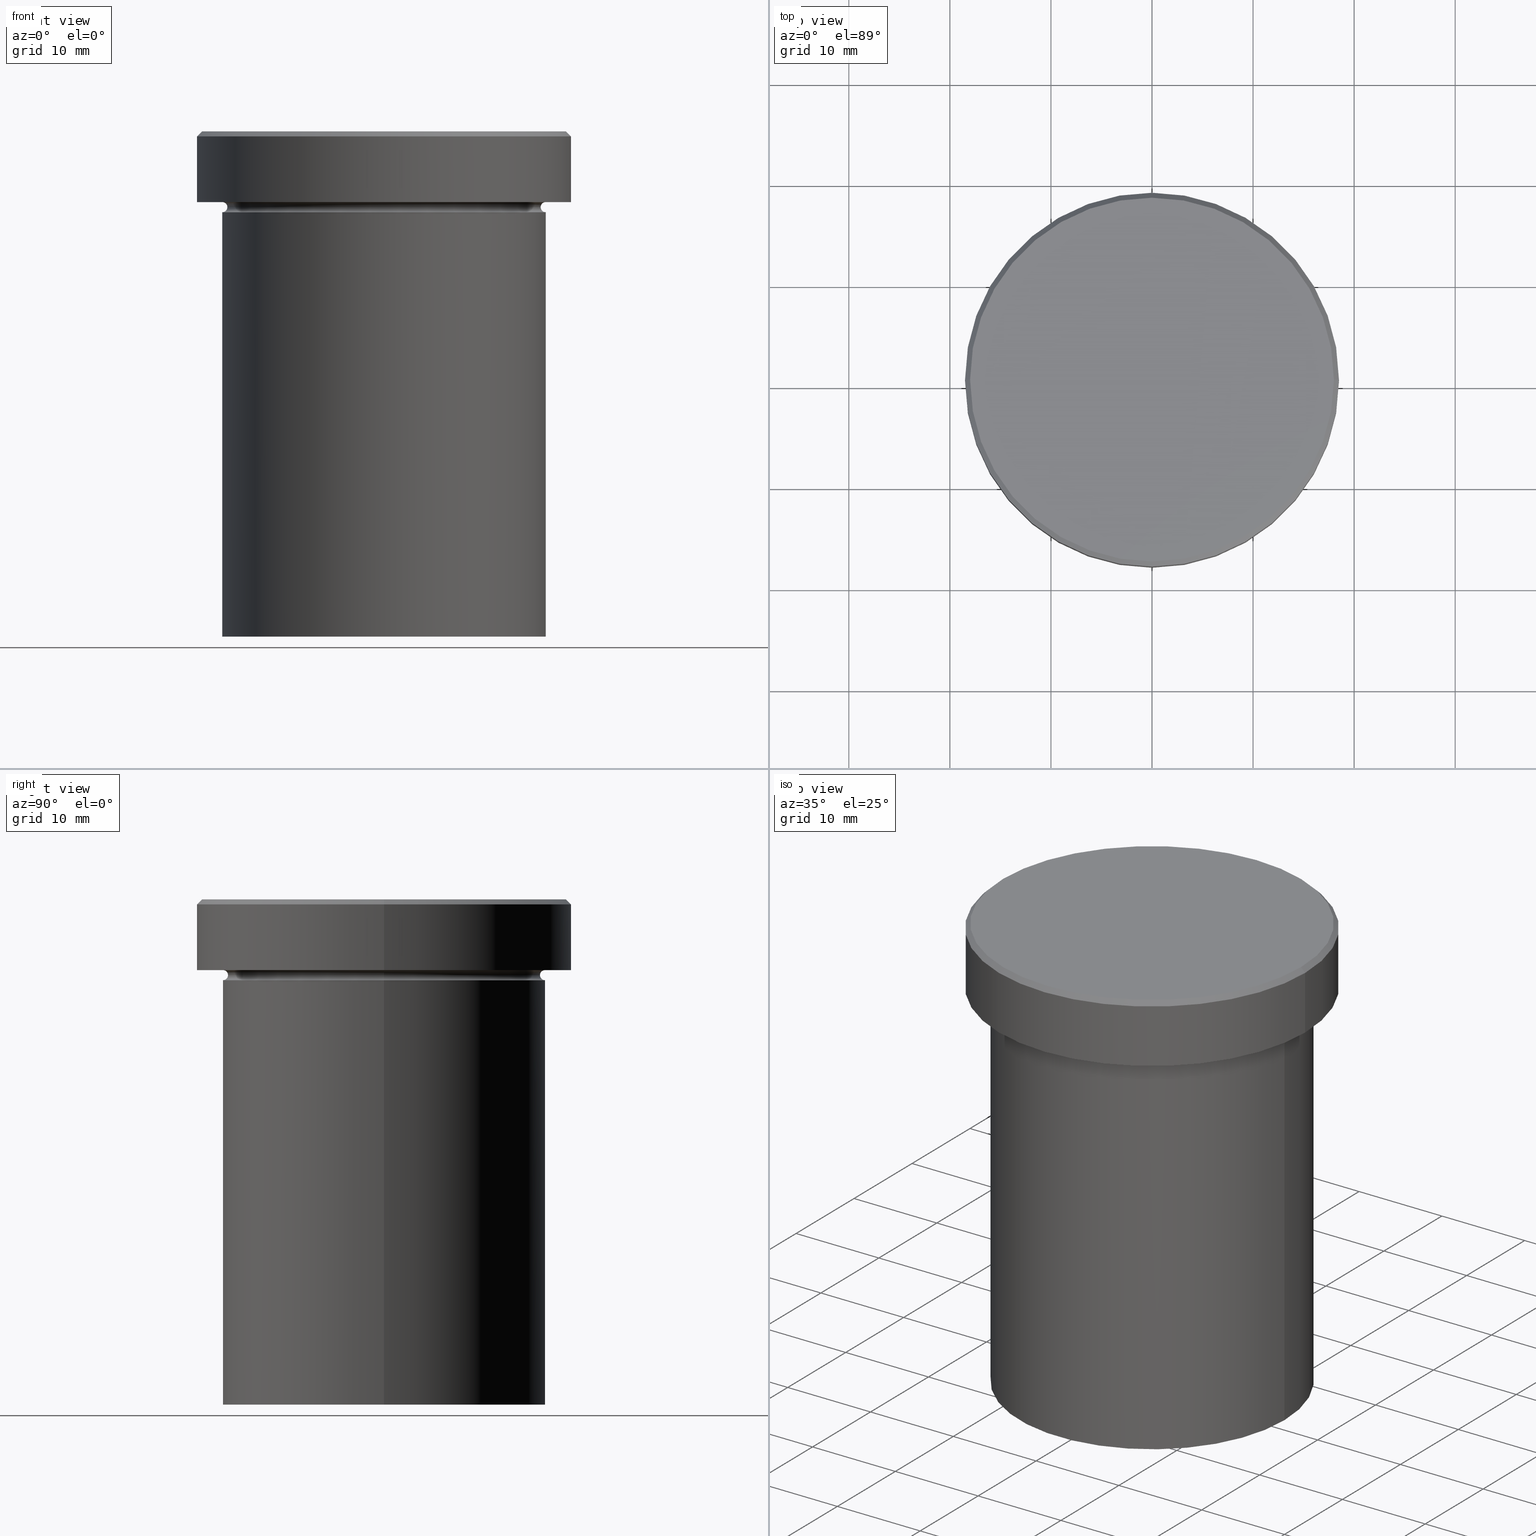
[diagram: canonical four-view strip — front | top / right | iso, engineering-drawing reading convention]
A machine part, canonical four-view strip (front | top / right | iso — engineering-drawing reading convention). The complete STEP part file that produces these views, byte-faithful:
ISO-10303-21;
HEADER;
FILE_DESCRIPTION (( 'STEP AP203' ),
    '1' );
FILE_NAME ('3202.STEP',
    '2024-01-02T18:55:02',
    ( '' ),
    ( '' ),
    'SwSTEP 2.0',
    'SolidWorks 2019',
    '' );
FILE_SCHEMA (( 'CONFIG_CONTROL_DESIGN' ));
ENDSEC;

DATA;
#1 = CARTESIAN_POINT ( 'NONE',  ( 0.000000000000000000, 0.000000000000000000, -0.5000000000000004441 ) ) ;
#2 = AXIS2_PLACEMENT_3D ( 'NONE', #148, #382, #142 ) ;
#3 = AXIS2_PLACEMENT_3D ( 'NONE', #265, #100, #23 ) ;
#4 = PERSON_AND_ORGANIZATION ( #391, #236 ) ;
#5 = AXIS2_PLACEMENT_3D ( 'NONE', #375, #83, #55 ) ;
#6 = PERSON_AND_ORGANIZATION ( #391, #236 ) ;
#7 = ORIENTED_EDGE ( 'NONE', *, *, #215, .F. ) ;
#8 = CARTESIAN_POINT ( 'NONE',  ( -18.50000000000000000, 2.265596578422603396E-15, 0.000000000000000000 ) ) ;
#9 = AXIS2_PLACEMENT_3D ( 'NONE', #273, #406, #307 ) ;
#10 = ADVANCED_FACE ( 'NONE', ( #116 ), #139, .F. ) ;
#11 = CARTESIAN_POINT ( 'NONE',  ( -16.00000000000000000, 0.000000000000000000, -6.999999999999999112 ) ) ;
#12 = AXIS2_PLACEMENT_3D ( 'NONE', #257, #387, #224 ) ;
#13 = DIRECTION ( 'NONE',  ( -0.7071067811865451302, 0.000000000000000000, -0.7071067811865500152 ) ) ;
#14 = DIRECTION ( 'NONE',  ( 1.000000000000000000, 0.000000000000000000, 0.000000000000000000 ) ) ;
#15 = AXIS2_PLACEMENT_3D ( 'NONE', #131, #402, #178 ) ;
#16 = AXIS2_PLACEMENT_3D ( 'NONE', #160, #332, #136 ) ;
#17 = ADVANCED_FACE ( 'NONE', ( #149 ), #85, .F. ) ;
#18 = ADVANCED_FACE ( 'NONE', ( #349 ), #189, .T. ) ;
#19 = LOCAL_TIME ( 19, 55, 2.000000000000000000, #373 ) ;
#20 = CALENDAR_DATE ( 2024, 2, 1 ) ;
#21 = ORIENTED_EDGE ( 'NONE', *, *, #191, .F. ) ;
#22 = LINE ( 'NONE', #68, #272 ) ;
#23 = DIRECTION ( 'NONE',  ( -1.000000000000000000, 0.000000000000000000, 0.000000000000000000 ) ) ;
#24 = DIRECTION ( 'NONE',  ( -0.000000000000000000, -0.000000000000000000, 1.000000000000000000 ) ) ;
#25 = DIRECTION ( 'NONE',  ( 0.000000000000000000, 0.000000000000000000, -1.000000000000000000 ) ) ;
#26 = EDGE_CURVE ( 'NONE', #168, #268, #202, .T. ) ;
#27 = CARTESIAN_POINT ( 'NONE',  ( 18.00000000000000355, 2.204364238465235822E-15, 0.000000000000000000 ) ) ;
#28 = CARTESIAN_POINT ( 'NONE',  ( 0.000000000000000000, 0.000000000000000000, -50.00000000000000000 ) ) ;
#29 = EDGE_CURVE ( 'NONE', #67, #168, #309, .T. ) ;
#30 = PERSON_AND_ORGANIZATION ( #391, #236 ) ;
#31 = TOROIDAL_SURFACE ( 'NONE', #344, 16.00000000000000000, 0.5000000000000000000 ) ;
#32 = DATE_AND_TIME ( #314, #249 ) ;
#33 = EDGE_LOOP ( 'NONE', ( #342, #229, #294, #43 ) ) ;
#34 = ORIENTED_EDGE ( 'NONE', *, *, #65, .T. ) ;
#35 = CARTESIAN_POINT ( 'NONE',  ( 0.000000000000000000, 0.000000000000000000, -7.500000000000000000 ) ) ;
#36 = CC_DESIGN_APPROVAL ( #56, ( #337 ) ) ;
#37 = CC_DESIGN_DATE_AND_TIME_ASSIGNMENT ( #399, #196, ( #337 ) ) ;
#38 = AXIS2_PLACEMENT_3D ( 'NONE', #105, #405, #369 ) ;
#39 = EDGE_LOOP ( 'NONE', ( #200, #76, #341, #165 ) ) ;
#40 = UNCERTAINTY_MEASURE_WITH_UNIT (LENGTH_MEASURE( 1.000000000000000082E-05 ), #93, 'distance_accuracy_value', 'NONE');
#41 = CARTESIAN_POINT ( 'NONE',  ( 0.000000000000000000, 0.000000000000000000, -7.500000000000000000 ) ) ;
#42 = CONICAL_SURFACE ( 'NONE', #9, 18.00000000000000355, 0.7853981633974447263 ) ;
#43 = ORIENTED_EDGE ( 'NONE', *, *, #191, .T. ) ;
#44 = DIRECTION ( 'NONE',  ( 0.000000000000000000, 0.000000000000000000, -1.000000000000000000 ) ) ;
#45 = ORIENTED_EDGE ( 'NONE', *, *, #407, .F. ) ;
#46 = CYLINDRICAL_SURFACE ( 'NONE', #118, 18.50000000000000000 ) ;
#47 = CC_DESIGN_PERSON_AND_ORGANIZATION_ASSIGNMENT ( #6, #54, ( #328 ) ) ;
#48 = ORIENTED_EDGE ( 'NONE', *, *, #356, .F. ) ;
#49 = CARTESIAN_POINT ( 'NONE',  ( 0.000000000000000000, 0.000000000000000000, 0.000000000000000000 ) ) ;
#50 = DIRECTION ( 'NONE',  ( -0.000000000000000000, -0.000000000000000000, 1.000000000000000000 ) ) ;
#51 = VECTOR ( 'NONE', #60, 1000.000000000000000 ) ;
#52 = CARTESIAN_POINT ( 'NONE',  ( 0.000000000000000000, 16.00000000000000000, -50.00000000000000000 ) ) ;
#53 = APPROVAL_PERSON_ORGANIZATION ( #4, #276, #86 ) ;
#54 = PERSON_AND_ORGANIZATION_ROLE ( 'design_owner' ) ;
#55 = DIRECTION ( 'NONE',  ( -1.000000000000000000, 0.000000000000000000, 0.000000000000000000 ) ) ;
#56 = APPROVAL ( #138, 'NEUR�EN�' ) ;
#57 = CARTESIAN_POINT ( 'NONE',  ( 0.000000000000000000, 0.000000000000000000, -0.5000000000000004441 ) ) ;
#58 = CARTESIAN_POINT ( 'NONE',  ( 0.000000000000000000, 0.000000000000000000, -6.999999999999998224 ) ) ;
#59 = APPROVAL_PERSON_ORGANIZATION ( #30, #321, #281 ) ;
#60 = DIRECTION ( 'NONE',  ( -0.000000000000000000, -0.000000000000000000, 1.000000000000000000 ) ) ;
#61 = EDGE_CURVE ( 'NONE', #104, #133, #336, .T. ) ;
#62 = CARTESIAN_POINT ( 'NONE',  ( 18.50000000000000000, 0.000000000000000000, -0.5000000000000004441 ) ) ;
#63 = EDGE_CURVE ( 'NONE', #70, #175, #291, .T. ) ;
#64 = CARTESIAN_POINT ( 'NONE',  ( 18.50000000000000000, 0.000000000000000000, 0.000000000000000000 ) ) ;
#65 = EDGE_CURVE ( 'NONE', #193, #268, #261, .T. ) ;
#66 = ORIENTED_EDGE ( 'NONE', *, *, #91, .F. ) ;
#67 = VERTEX_POINT ( 'NONE', #395 ) ;
#68 = CARTESIAN_POINT ( 'NONE',  ( -16.00000000000000000, 1.959434878635765131E-15, 0.000000000000000000 ) ) ;
#69 = AXIS2_PLACEMENT_3D ( 'NONE', #84, #88, #117 ) ;
#70 = VERTEX_POINT ( 'NONE', #227 ) ;
#71 = EDGE_CURVE ( 'NONE', #362, #268, #317, .T. ) ;
#72 = PERSON_AND_ORGANIZATION ( #391, #236 ) ;
#73 = ORIENTED_EDGE ( 'NONE', *, *, #242, .F. ) ;
#74 = CYLINDRICAL_SURFACE ( 'NONE', #81, 16.00000000000000000 ) ;
#75 = MANIFOLD_SOLID_BREP ( 'Zkosen�1', #274 ) ;
#76 = ORIENTED_EDGE ( 'NONE', *, *, #394, .T. ) ;
#77 = DIRECTION ( 'NONE',  ( -1.000000000000000000, 0.000000000000000000, -0.000000000000000000 ) ) ;
#78 = DATE_TIME_ROLE ( 'creation_date' ) ;
#79 = EDGE_LOOP ( 'NONE', ( #73, #400, #403, #209 ) ) ;
#80 = DIRECTION ( 'NONE',  ( -0.000000000000000000, -0.000000000000000000, 1.000000000000000000 ) ) ;
#81 = AXIS2_PLACEMENT_3D ( 'NONE', #49, #248, #275 ) ;
#82 = EDGE_CURVE ( 'NONE', #362, #67, #380, .T. ) ;
#83 = DIRECTION ( 'NONE',  ( -0.000000000000000000, -0.000000000000000000, 1.000000000000000000 ) ) ;
#84 = CARTESIAN_POINT ( 'NONE',  ( 0.000000000000000000, 0.000000000000000000, 0.000000000000000000 ) ) ;
#85 = TOROIDAL_SURFACE ( 'NONE', #216, 16.00000000000000000, 0.5000000000000000000 ) ;
#86 = APPROVAL_ROLE ( '' ) ;
#87 = EDGE_LOOP ( 'NONE', ( #99, #320 ) ) ;
#88 = DIRECTION ( 'NONE',  ( 0.000000000000000000, 0.000000000000000000, -1.000000000000000000 ) ) ;
#89 = DIRECTION ( 'NONE',  ( 1.000000000000000000, 0.000000000000000000, 0.000000000000000000 ) ) ;
#90 = AXIS2_PLACEMENT_3D ( 'NONE', #58, #182, #315 ) ;
#91 = EDGE_CURVE ( 'NONE', #371, #193, #221, .T. ) ;
#92 = EDGE_LOOP ( 'NONE', ( #110, #98, #392, #306 ) ) ;
#93 =( LENGTH_UNIT ( ) NAMED_UNIT ( * ) SI_UNIT ( .MILLI., .METRE. ) );
#94 = CARTESIAN_POINT ( 'NONE',  ( 16.00000000000000000, 0.000000000000000000, -50.00000000000000000 ) ) ;
#95 = CC_DESIGN_PERSON_AND_ORGANIZATION_ASSIGNMENT ( #279, #310, ( #108 ) ) ;
#96 = DIRECTION ( 'NONE',  ( 0.000000000000000000, -0.000000000000000000, 1.000000000000000000 ) ) ;
#97 = FACE_OUTER_BOUND ( 'NONE', #264, .T. ) ;
#98 = ORIENTED_EDGE ( 'NONE', *, *, #29, .T. ) ;
#99 = ORIENTED_EDGE ( 'NONE', *, *, #262, .T. ) ;
#100 = DIRECTION ( 'NONE',  ( -0.000000000000000000, -0.000000000000000000, 1.000000000000000000 ) ) ;
#101 = CARTESIAN_POINT ( 'NONE',  ( 0.000000000000000000, 0.000000000000000000, 0.000000000000000000 ) ) ;
#102 = EDGE_CURVE ( 'NONE', #268, #168, #353, .T. ) ;
#103 = AXIS2_PLACEMENT_3D ( 'NONE', #41, #363, #300 ) ;
#104 = VERTEX_POINT ( 'NONE', #112 ) ;
#105 = CARTESIAN_POINT ( 'NONE',  ( 0.000000000000000000, 18.50000000000000000, -6.999999999999999112 ) ) ;
#106 = DIRECTION ( 'NONE',  ( 1.000000000000000000, 0.000000000000000000, 0.000000000000000000 ) ) ;
#107 = COORDINATED_UNIVERSAL_TIME_OFFSET ( 1, 0, .AHEAD. ) ;
#108 = PRODUCT_DEFINITION ( 'NEZN�M�', '', #377, #348 ) ;
#109 = APPLICATION_PROTOCOL_DEFINITION ( 'international standard', 'config_control_design', 1994, #383 ) ;
#110 = ORIENTED_EDGE ( 'NONE', *, *, #389, .F. ) ;
#111 = CARTESIAN_POINT ( 'NONE',  ( -18.50000000000000000, 2.265596578422603396E-15, -0.5000000000000004441 ) ) ;
#112 = CARTESIAN_POINT ( 'NONE',  ( 18.50000000000000000, 0.000000000000000000, -6.999999999999998224 ) ) ;
#113 = APPROVAL_STATUS ( 'not_yet_approved' ) ;
#114 = CARTESIAN_POINT ( 'NONE',  ( -16.00000000000000000, 1.959434878635765131E-15, -8.000000000000000000 ) ) ;
#115 = APPROVAL_DATE_TIME ( #32, #276 ) ;
#116 = FACE_OUTER_BOUND ( 'NONE', #157, .T. ) ;
#117 = DIRECTION ( 'NONE',  ( -1.000000000000000000, 0.000000000000000000, 0.000000000000000000 ) ) ;
#118 = AXIS2_PLACEMENT_3D ( 'NONE', #297, #134, #404 ) ;
#119 = DIRECTION ( 'NONE',  ( 1.000000000000000000, 0.000000000000000000, 0.000000000000000000 ) ) ;
#120 = DIRECTION ( 'NONE',  ( -0.000000000000000000, -0.000000000000000000, 1.000000000000000000 ) ) ;
#121 = CC_DESIGN_PERSON_AND_ORGANIZATION_ASSIGNMENT ( #158, #125, ( #337 ) ) ;
#122 = DIRECTION ( 'NONE',  ( -0.000000000000000000, -0.000000000000000000, 1.000000000000000000 ) ) ;
#123 = DIRECTION ( 'NONE',  ( -0.000000000000000000, -0.000000000000000000, 1.000000000000000000 ) ) ;
#124 = EDGE_CURVE ( 'NONE', #247, #133, #376, .T. ) ;
#125 = PERSON_AND_ORGANIZATION_ROLE ( 'classification_officer' ) ;
#126 = ORIENTED_EDGE ( 'NONE', *, *, #215, .T. ) ;
#127 = ADVANCED_BREP_SHAPE_REPRESENTATION ( '3202', ( #75, #15 ), #144 ) ;
#128 = CIRCLE ( 'NONE', #237, 16.00000000000000000 ) ;
#129 = ORIENTED_EDGE ( 'NONE', *, *, #61, .F. ) ;
#130 = CARTESIAN_POINT ( 'NONE',  ( -18.00000000000000355, 0.000000000000000000, 0.000000000000000000 ) ) ;
#131 = CARTESIAN_POINT ( 'NONE',  ( 0.000000000000000000, 0.000000000000000000, 0.000000000000000000 ) ) ;
#132 = ADVANCED_FACE ( 'NONE', ( #184 ), #255, .T. ) ;
#133 = VERTEX_POINT ( 'NONE', #62 ) ;
#134 = DIRECTION ( 'NONE',  ( -0.000000000000000000, -0.000000000000000000, 1.000000000000000000 ) ) ;
#135 = DIRECTION ( 'NONE',  ( 0.7071067811865451302, 8.659560562354903276E-17, -0.7071067811865500152 ) ) ;
#136 = DIRECTION ( 'NONE',  ( -1.000000000000000000, -1.224646799147349509E-16, 0.000000000000000000 ) ) ;
#137 = EDGE_CURVE ( 'NONE', #67, #175, #219, .T. ) ;
#138 = APPROVAL_STATUS ( 'not_yet_approved' ) ;
#139 = TOROIDAL_SURFACE ( 'NONE', #286, 16.00000000000000000, 0.5000000000000000000 ) ;
#140 = CARTESIAN_POINT ( 'NONE',  ( 0.000000000000000000, 0.000000000000000000, -7.500000000000000000 ) ) ;
#141 = CALENDAR_DATE ( 2024, 2, 1 ) ;
#142 = DIRECTION ( 'NONE',  ( 1.000000000000000000, 0.000000000000000000, 0.000000000000000000 ) ) ;
#143 = DATE_AND_TIME ( #250, #19 ) ;
#144 =( GEOMETRIC_REPRESENTATION_CONTEXT ( 3 ) GLOBAL_UNCERTAINTY_ASSIGNED_CONTEXT ( ( #40 ) ) GLOBAL_UNIT_ASSIGNED_CONTEXT ( ( #93, #176, #210 ) ) REPRESENTATION_CONTEXT ( 'NONE', 'WORKASPACE' ) );
#145 = DIRECTION ( 'NONE',  ( -0.000000000000000000, -0.000000000000000000, 1.000000000000000000 ) ) ;
#146 = ORIENTED_EDGE ( 'NONE', *, *, #185, .F. ) ;
#147 = EDGE_CURVE ( 'NONE', #360, #247, #217, .T. ) ;
#148 = CARTESIAN_POINT ( 'NONE',  ( 0.000000000000000000, 0.000000000000000000, 0.000000000000000000 ) ) ;
#149 = FACE_OUTER_BOUND ( 'NONE', #92, .T. ) ;
#150 = DIRECTION ( 'NONE',  ( -1.000000000000000000, 0.000000000000000000, 0.000000000000000000 ) ) ;
#151 = LOCAL_TIME ( 19, 55, 2.000000000000000000, #293 ) ;
#152 = ADVANCED_FACE ( 'NONE', ( #283 ), #162, .T. ) ;
#153 = CARTESIAN_POINT ( 'NONE',  ( 0.000000000000000000, 0.000000000000000000, -7.500000000000000000 ) ) ;
#154 = CARTESIAN_POINT ( 'NONE',  ( 0.000000000000000000, 0.000000000000000000, 0.000000000000000000 ) ) ;
#155 = LOCAL_TIME ( 19, 55, 2.000000000000000000, #367 ) ;
#156 = CC_DESIGN_SECURITY_CLASSIFICATION ( #337, ( #377 ) ) ;
#157 = EDGE_LOOP ( 'NONE', ( #280, #296, #365, #299 ) ) ;
#158 = PERSON_AND_ORGANIZATION ( #391, #236 ) ;
#159 = ORIENTED_EDGE ( 'NONE', *, *, #26, .F. ) ;
#160 = CARTESIAN_POINT ( 'NONE',  ( 16.00000000000000000, 1.959434878635765131E-15, -7.500000000000000000 ) ) ;
#161 = AXIS2_PLACEMENT_3D ( 'NONE', #333, #50, #379 ) ;
#162 = CONICAL_SURFACE ( 'NONE', #69, 18.00000000000000355, 0.7853981633974447263 ) ;
#163 = ADVANCED_FACE ( 'NONE', ( #211 ), #326, .F. ) ;
#164 = PERSON_AND_ORGANIZATION ( #391, #236 ) ;
#165 = ORIENTED_EDGE ( 'NONE', *, *, #65, .F. ) ;
#166 = FACE_OUTER_BOUND ( 'NONE', #33, .T. ) ;
#167 = VECTOR ( 'NONE', #177, 1000.000000000000000 ) ;
#168 = VERTEX_POINT ( 'NONE', #114 ) ;
#169 = CARTESIAN_POINT ( 'NONE',  ( -18.50000000000000000, 2.265596578422603396E-15, -6.999999999999998224 ) ) ;
#170 = ORIENTED_EDGE ( 'NONE', *, *, #394, .F. ) ;
#171 = AXIS2_PLACEMENT_3D ( 'NONE', #57, #390, #180 ) ;
#172 = APPLICATION_PROTOCOL_DEFINITION ( 'international standard', 'config_control_design', 1994, #230 ) ;
#173 = CARTESIAN_POINT ( 'NONE',  ( -16.00000000000000000, 1.959434878635765131E-15, -50.00000000000000000 ) ) ;
#174 = CARTESIAN_POINT ( 'NONE',  ( 16.00000000000000000, 0.000000000000000000, 0.000000000000000000 ) ) ;
#175 = VERTEX_POINT ( 'NONE', #11 ) ;
#176 =( NAMED_UNIT ( * ) PLANE_ANGLE_UNIT ( ) SI_UNIT ( $, .RADIAN. ) );
#177 = DIRECTION ( 'NONE',  ( -0.000000000000000000, -0.000000000000000000, 1.000000000000000000 ) ) ;
#178 = DIRECTION ( 'NONE',  ( 1.000000000000000000, 0.000000000000000000, 0.000000000000000000 ) ) ;
#179 = CARTESIAN_POINT ( 'NONE',  ( 0.000000000000000000, 0.000000000000000000, -7.500000000000000000 ) ) ;
#180 = DIRECTION ( 'NONE',  ( 1.000000000000000000, 0.000000000000000000, 0.000000000000000000 ) ) ;
#181 = COORDINATED_UNIVERSAL_TIME_OFFSET ( 1, 0, .AHEAD. ) ;
#182 = DIRECTION ( 'NONE',  ( -0.000000000000000000, -0.000000000000000000, 1.000000000000000000 ) ) ;
#183 = AXIS2_PLACEMENT_3D ( 'NONE', #289, #123, #260 ) ;
#184 = FACE_OUTER_BOUND ( 'NONE', #253, .T. ) ;
#185 = EDGE_CURVE ( 'NONE', #193, #371, #128, .T. ) ;
#186 = AXIS2_PLACEMENT_3D ( 'NONE', #1, #350, #89 ) ;
#187 = CYLINDRICAL_SURFACE ( 'NONE', #213, 16.00000000000000000 ) ;
#188 = SHAPE_DEFINITION_REPRESENTATION ( #240, #127 ) ;
#189 = PLANE ( 'NONE',  #393 ) ;
#190 = ORIENTED_EDGE ( 'NONE', *, *, #262, .F. ) ;
#191 = EDGE_CURVE ( 'NONE', #133, #247, #254, .T. ) ;
#192 = DIRECTION ( 'NONE',  ( -0.000000000000000000, -0.000000000000000000, 1.000000000000000000 ) ) ;
#193 = VERTEX_POINT ( 'NONE', #94 ) ;
#194 = CARTESIAN_POINT ( 'NONE',  ( -18.00000000000000355, 0.000000000000000000, 0.000000000000000000 ) ) ;
#195 = ADVANCED_FACE ( 'NONE', ( #351 ), #187, .T. ) ;
#196 = DATE_TIME_ROLE ( 'classification_date' ) ;
#197 = ORIENTED_EDGE ( 'NONE', *, *, #356, .T. ) ;
#198 = DIRECTION ( 'NONE',  ( -0.000000000000000000, -0.000000000000000000, 1.000000000000000000 ) ) ;
#199 = CIRCLE ( 'NONE', #16, 0.5000000000000004441 ) ;
#200 = ORIENTED_EDGE ( 'NONE', *, *, #185, .T. ) ;
#201 = CARTESIAN_POINT ( 'NONE',  ( 16.00000000000000000, 0.000000000000000000, -8.000000000000000000 ) ) ;
#202 = CIRCLE ( 'NONE', #183, 16.00000000000000000 ) ;
#203 = FACE_OUTER_BOUND ( 'NONE', #252, .T. ) ;
#204 = DIRECTION ( 'NONE',  ( 1.000000000000000000, 0.000000000000000000, 0.000000000000000000 ) ) ;
#205 = EDGE_CURVE ( 'NONE', #360, #104, #259, .T. ) ;
#206 = LINE ( 'NONE', #27, #263 ) ;
#207 = DATE_AND_TIME ( #245, #208 ) ;
#208 = LOCAL_TIME ( 19, 55, 2.000000000000000000, #107 ) ;
#209 = ORIENTED_EDGE ( 'NONE', *, *, #63, .F. ) ;
#210 =( NAMED_UNIT ( * ) SI_UNIT ( $, .STERADIAN. ) SOLID_ANGLE_UNIT ( ) );
#211 = FACE_OUTER_BOUND ( 'NONE', #331, .T. ) ;
#212 = DIRECTION ( 'NONE',  ( 1.000000000000000000, 0.000000000000000000, 0.000000000000000000 ) ) ;
#213 = AXIS2_PLACEMENT_3D ( 'NONE', #312, #145, #212 ) ;
#214 = DIRECTION ( 'NONE',  ( -0.000000000000000000, -0.000000000000000000, 1.000000000000000000 ) ) ;
#215 = EDGE_CURVE ( 'NONE', #234, #247, #287, .T. ) ;
#216 = AXIS2_PLACEMENT_3D ( 'NONE', #153, #122, #14 ) ;
#217 = LINE ( 'NONE', #8, #51 ) ;
#218 = DIRECTION ( 'NONE',  ( 0.000000000000000000, 0.000000000000000000, -1.000000000000000000 ) ) ;
#219 = CIRCLE ( 'NONE', #226, 0.5000000000000004441 ) ;
#220 = CIRCLE ( 'NONE', #3, 16.00000000000000000 ) ;
#221 = CIRCLE ( 'NONE', #282, 16.00000000000000000 ) ;
#222 = ADVANCED_FACE ( 'NONE', ( #97 ), #74, .T. ) ;
#223 = PERSON_AND_ORGANIZATION_ROLE ( 'creator' ) ;
#224 = DIRECTION ( 'NONE',  ( -1.000000000000000000, 1.224646799147349509E-16, 0.000000000000000000 ) ) ;
#225 = PERSON_AND_ORGANIZATION ( #391, #236 ) ;
#226 = AXIS2_PLACEMENT_3D ( 'NONE', #277, #347, #386 ) ;
#227 = CARTESIAN_POINT ( 'NONE',  ( 16.00000000000000000, 1.959434878635765131E-15, -6.999999999999999112 ) ) ;
#228 = ADVANCED_FACE ( 'NONE', ( #303, #203 ), #401, .T. ) ;
#229 = ORIENTED_EDGE ( 'NONE', *, *, #205, .T. ) ;
#230 = APPLICATION_CONTEXT ( 'configuration controlled 3d designs of mechanical parts and assemblies' ) ;
#231 = AXIS2_PLACEMENT_3D ( 'NONE', #308, #271, #241 ) ;
#232 = EDGE_LOOP ( 'NONE', ( #197, #368 ) ) ;
#233 = CARTESIAN_POINT ( 'NONE',  ( 18.00000000000000355, 2.234980408443919609E-15, 0.000000000000000000 ) ) ;
#234 = VERTEX_POINT ( 'NONE', #130 ) ;
#235 = CARTESIAN_POINT ( 'NONE',  ( 0.000000000000000000, 0.000000000000000000, -6.999999999999998224 ) ) ;
#236 = ORGANIZATION ( 'NEUR�EN�', 'NEUR�EN�', '' ) ;
#237 = AXIS2_PLACEMENT_3D ( 'NONE', #343, #120, #258 ) ;
#238 = EDGE_LOOP ( 'NONE', ( #146, #66 ) ) ;
#239 = FACE_OUTER_BOUND ( 'NONE', #329, .T. ) ;
#240 = PRODUCT_DEFINITION_SHAPE ( 'NONE', 'NONE',  #108 ) ;
#241 = DIRECTION ( 'NONE',  ( 1.000000000000000000, 0.000000000000000000, 0.000000000000000000 ) ) ;
#242 = EDGE_CURVE ( 'NONE', #362, #70, #199, .T. ) ;
#243 = ORIENTED_EDGE ( 'NONE', *, *, #389, .T. ) ;
#244 = FACE_OUTER_BOUND ( 'NONE', #79, .T. ) ;
#245 = CALENDAR_DATE ( 2024, 2, 1 ) ;
#246 = APPROVAL_STATUS ( 'not_yet_approved' ) ;
#247 = VERTEX_POINT ( 'NONE', #111 ) ;
#248 = DIRECTION ( 'NONE',  ( -0.000000000000000000, -0.000000000000000000, 1.000000000000000000 ) ) ;
#249 = LOCAL_TIME ( 19, 55, 2.000000000000000000, #181 ) ;
#250 = CALENDAR_DATE ( 2024, 2, 1 ) ;
#251 = VERTEX_POINT ( 'NONE', #233 ) ;
#252 = EDGE_LOOP ( 'NONE', ( #45, #322 ) ) ;
#253 = EDGE_LOOP ( 'NONE', ( #324, #339, #397, #129 ) ) ;
#254 = CIRCLE ( 'NONE', #171, 18.50000000000000000 ) ;
#255 = CYLINDRICAL_SURFACE ( 'NONE', #2, 18.50000000000000000 ) ;
#256 = CC_DESIGN_DATE_AND_TIME_ASSIGNMENT ( #409, #78, ( #108 ) ) ;
#257 = CARTESIAN_POINT ( 'NONE',  ( -16.00000000000000000, 1.959434878635765131E-15, -7.500000000000000000 ) ) ;
#258 = DIRECTION ( 'NONE',  ( 1.000000000000000000, 0.000000000000000000, 0.000000000000000000 ) ) ;
#259 = CIRCLE ( 'NONE', #90, 18.50000000000000000 ) ;
#260 = DIRECTION ( 'NONE',  ( 1.000000000000000000, 0.000000000000000000, 0.000000000000000000 ) ) ;
#261 = LINE ( 'NONE', #174, #167 ) ;
#262 = EDGE_CURVE ( 'NONE', #175, #70, #220, .T. ) ;
#263 = VECTOR ( 'NONE', #135, 1000.000000000000114 ) ;
#264 = EDGE_LOOP ( 'NONE', ( #170, #408, #34, #159 ) ) ;
#265 = CARTESIAN_POINT ( 'NONE',  ( 0.000000000000000000, 0.000000000000000000, -6.999999999999999112 ) ) ;
#266 = ORIENTED_EDGE ( 'NONE', *, *, #137, .F. ) ;
#267 = CARTESIAN_POINT ( 'NONE',  ( 0.000000000000000000, 0.000000000000000000, 0.000000000000000000 ) ) ;
#268 = VERTEX_POINT ( 'NONE', #201 ) ;
#269 = DIRECTION ( 'NONE',  ( -0.000000000000000000, -0.000000000000000000, 1.000000000000000000 ) ) ;
#270 = ADVANCED_FACE ( 'NONE', ( #239 ), #42, .T. ) ;
#271 = DIRECTION ( 'NONE',  ( -0.000000000000000000, -0.000000000000000000, 1.000000000000000000 ) ) ;
#272 = VECTOR ( 'NONE', #198, 1000.000000000000000 ) ;
#273 = CARTESIAN_POINT ( 'NONE',  ( 0.000000000000000000, 0.000000000000000000, 0.000000000000000000 ) ) ;
#274 = CLOSED_SHELL ( 'NONE', ( #270, #163, #17, #195, #132, #352, #18, #398, #228, #222, #10, #345, #152 ) ) ;
#275 = DIRECTION ( 'NONE',  ( 1.000000000000000000, 0.000000000000000000, 0.000000000000000000 ) ) ;
#276 = APPROVAL ( #113, 'NEUR�EN�' ) ;
#277 = CARTESIAN_POINT ( 'NONE',  ( -16.00000000000000000, 0.000000000000000000, -7.500000000000000000 ) ) ;
#278 = CIRCLE ( 'NONE', #327, 18.00000000000000355 ) ;
#279 = PERSON_AND_ORGANIZATION ( #391, #236 ) ;
#280 = ORIENTED_EDGE ( 'NONE', *, *, #29, .F. ) ;
#281 = APPROVAL_ROLE ( '' ) ;
#282 = AXIS2_PLACEMENT_3D ( 'NONE', #28, #370, #204 ) ;
#283 = FACE_OUTER_BOUND ( 'NONE', #378, .T. ) ;
#284 = EDGE_CURVE ( 'NONE', #251, #133, #206, .T. ) ;
#285 = CC_DESIGN_APPROVAL ( #276, ( #377 ) ) ;
#286 = AXIS2_PLACEMENT_3D ( 'NONE', #179, #214, #346 ) ;
#287 = LINE ( 'NONE', #194, #318 ) ;
#288 = APPROVAL_DATE_TIME ( #207, #56 ) ;
#289 = CARTESIAN_POINT ( 'NONE',  ( 0.000000000000000000, 0.000000000000000000, -8.000000000000000000 ) ) ;
#290 = CIRCLE ( 'NONE', #103, 15.50000000000000000 ) ;
#291 = CIRCLE ( 'NONE', #5, 16.00000000000000000 ) ;
#292 = EDGE_CURVE ( 'NONE', #251, #234, #384, .T. ) ;
#293 = COORDINATED_UNIVERSAL_TIME_OFFSET ( 1, 0, .AHEAD. ) ;
#294 = ORIENTED_EDGE ( 'NONE', *, *, #61, .T. ) ;
#295 = CARTESIAN_POINT ( 'NONE',  ( 15.50000000000000000, 0.000000000000000000, -7.500000000000000000 ) ) ;
#296 = ORIENTED_EDGE ( 'NONE', *, *, #82, .F. ) ;
#297 = CARTESIAN_POINT ( 'NONE',  ( 0.000000000000000000, 0.000000000000000000, 0.000000000000000000 ) ) ;
#298 = PRODUCT_RELATED_PRODUCT_CATEGORY ( 'detail', '', ( #328 ) ) ;
#299 = ORIENTED_EDGE ( 'NONE', *, *, #102, .T. ) ;
#300 = DIRECTION ( 'NONE',  ( 1.000000000000000000, 0.000000000000000000, 0.000000000000000000 ) ) ;
#301 = DIRECTION ( 'NONE',  ( 0.000000000000000000, -1.000000000000000000, 0.000000000000000000 ) ) ;
#302 = ORIENTED_EDGE ( 'NONE', *, *, #124, .F. ) ;
#303 = FACE_BOUND ( 'NONE', #87, .T. ) ;
#304 = AXIS2_PLACEMENT_3D ( 'NONE', #101, #269, #106 ) ;
#305 = MECHANICAL_CONTEXT ( 'NONE', #230, 'mechanical' ) ;
#306 = ORIENTED_EDGE ( 'NONE', *, *, #71, .F. ) ;
#307 = DIRECTION ( 'NONE',  ( -1.000000000000000000, 0.000000000000000000, 0.000000000000000000 ) ) ;
#308 = CARTESIAN_POINT ( 'NONE',  ( 0.000000000000000000, 0.000000000000000000, -7.500000000000000000 ) ) ;
#309 = CIRCLE ( 'NONE', #12, 0.5000000000000004441 ) ;
#310 = PERSON_AND_ORGANIZATION_ROLE ( 'creator' ) ;
#311 = ORIENTED_EDGE ( 'NONE', *, *, #284, .F. ) ;
#312 = CARTESIAN_POINT ( 'NONE',  ( 0.000000000000000000, 0.000000000000000000, 0.000000000000000000 ) ) ;
#313 = CIRCLE ( 'NONE', #357, 18.50000000000000000 ) ;
#314 = CALENDAR_DATE ( 2024, 2, 1 ) ;
#315 = DIRECTION ( 'NONE',  ( 1.000000000000000000, 0.000000000000000000, 0.000000000000000000 ) ) ;
#316 = AXIS2_PLACEMENT_3D ( 'NONE', #52, #44, #77 ) ;
#317 = CIRCLE ( 'NONE', #388, 0.5000000000000004441 ) ;
#318 = VECTOR ( 'NONE', #13, 1000.000000000000114 ) ;
#319 = PERSON_AND_ORGANIZATION_ROLE ( 'design_supplier' ) ;
#320 = ORIENTED_EDGE ( 'NONE', *, *, #63, .T. ) ;
#321 = APPROVAL ( #246, 'NEUR�EN�' ) ;
#322 = ORIENTED_EDGE ( 'NONE', *, *, #205, .F. ) ;
#323 = DIRECTION ( 'NONE',  ( 1.000000000000000000, 0.000000000000000000, 0.000000000000000000 ) ) ;
#324 = ORIENTED_EDGE ( 'NONE', *, *, #407, .T. ) ;
#325 = FACE_OUTER_BOUND ( 'NONE', #238, .T. ) ;
#326 = TOROIDAL_SURFACE ( 'NONE', #354, 16.00000000000000000, 0.5000000000000000000 ) ;
#327 = AXIS2_PLACEMENT_3D ( 'NONE', #267, #80, #323 ) ;
#328 = PRODUCT ( '3202', '3202', '', ( #305 ) ) ;
#329 = EDGE_LOOP ( 'NONE', ( #334, #355, #302, #7 ) ) ;
#330 = DIRECTION ( 'NONE',  ( -1.000000000000000000, 0.000000000000000000, 0.000000000000000000 ) ) ;
#331 = EDGE_LOOP ( 'NONE', ( #243, #385, #190, #266 ) ) ;
#332 = DIRECTION ( 'NONE',  ( -1.224646799147353207E-16, 1.000000000000000000, 0.000000000000000000 ) ) ;
#333 = CARTESIAN_POINT ( 'NONE',  ( 0.000000000000000000, 0.000000000000000000, -8.000000000000000000 ) ) ;
#334 = ORIENTED_EDGE ( 'NONE', *, *, #292, .F. ) ;
#335 = CC_DESIGN_PERSON_AND_ORGANIZATION_ASSIGNMENT ( #72, #223, ( #377 ) ) ;
#336 = LINE ( 'NONE', #64, #361 ) ;
#337 = SECURITY_CLASSIFICATION ( '', '', #358 ) ;
#338 = APPROVAL_ROLE ( '' ) ;
#339 = ORIENTED_EDGE ( 'NONE', *, *, #147, .T. ) ;
#340 = DIRECTION ( 'NONE',  ( 1.000000000000000000, 0.000000000000000000, 0.000000000000000000 ) ) ;
#341 = ORIENTED_EDGE ( 'NONE', *, *, #102, .F. ) ;
#342 = ORIENTED_EDGE ( 'NONE', *, *, #147, .F. ) ;
#343 = CARTESIAN_POINT ( 'NONE',  ( 0.000000000000000000, 0.000000000000000000, -50.00000000000000000 ) ) ;
#344 = AXIS2_PLACEMENT_3D ( 'NONE', #140, #374, #330 ) ;
#345 = ADVANCED_FACE ( 'NONE', ( #244 ), #31, .F. ) ;
#346 = DIRECTION ( 'NONE',  ( 1.000000000000000000, 0.000000000000000000, 0.000000000000000000 ) ) ;
#347 = DIRECTION ( 'NONE',  ( -0.000000000000000000, -1.000000000000000000, -0.000000000000000000 ) ) ;
#348 = DESIGN_CONTEXT ( 'detailed design', #383, 'design' ) ;
#349 = FACE_OUTER_BOUND ( 'NONE', #232, .T. ) ;
#350 = DIRECTION ( 'NONE',  ( 0.000000000000000000, 0.000000000000000000, -1.000000000000000000 ) ) ;
#351 = FACE_OUTER_BOUND ( 'NONE', #39, .T. ) ;
#352 = ADVANCED_FACE ( 'NONE', ( #325 ), #372, .T. ) ;
#353 = CIRCLE ( 'NONE', #161, 16.00000000000000000 ) ;
#354 = AXIS2_PLACEMENT_3D ( 'NONE', #35, #218, #150 ) ;
#355 = ORIENTED_EDGE ( 'NONE', *, *, #284, .T. ) ;
#356 = EDGE_CURVE ( 'NONE', #234, #251, #278, .T. ) ;
#357 = AXIS2_PLACEMENT_3D ( 'NONE', #235, #24, #340 ) ;
#358 = SECURITY_CLASSIFICATION_LEVEL ( 'unclassified' ) ;
#359 = CARTESIAN_POINT ( 'NONE',  ( 16.00000000000000000, 0.000000000000000000, -7.500000000000000000 ) ) ;
#360 = VERTEX_POINT ( 'NONE', #169 ) ;
#361 = VECTOR ( 'NONE', #192, 1000.000000000000000 ) ;
#362 = VERTEX_POINT ( 'NONE', #295 ) ;
#363 = DIRECTION ( 'NONE',  ( -0.000000000000000000, -0.000000000000000000, 1.000000000000000000 ) ) ;
#364 = CC_DESIGN_PERSON_AND_ORGANIZATION_ASSIGNMENT ( #225, #319, ( #377 ) ) ;
#365 = ORIENTED_EDGE ( 'NONE', *, *, #71, .T. ) ;
#366 = CC_DESIGN_APPROVAL ( #321, ( #108 ) ) ;
#367 = COORDINATED_UNIVERSAL_TIME_OFFSET ( 1, 0, .AHEAD. ) ;
#368 = ORIENTED_EDGE ( 'NONE', *, *, #292, .T. ) ;
#369 = DIRECTION ( 'NONE',  ( -1.000000000000000000, 0.000000000000000000, -0.000000000000000000 ) ) ;
#370 = DIRECTION ( 'NONE',  ( -0.000000000000000000, -0.000000000000000000, 1.000000000000000000 ) ) ;
#371 = VERTEX_POINT ( 'NONE', #173 ) ;
#372 = PLANE ( 'NONE',  #316 ) ;
#373 = COORDINATED_UNIVERSAL_TIME_OFFSET ( 1, 0, .AHEAD. ) ;
#374 = DIRECTION ( 'NONE',  ( 0.000000000000000000, 0.000000000000000000, -1.000000000000000000 ) ) ;
#375 = CARTESIAN_POINT ( 'NONE',  ( 0.000000000000000000, 0.000000000000000000, -6.999999999999999112 ) ) ;
#376 = CIRCLE ( 'NONE', #186, 18.50000000000000000 ) ;
#377 = PRODUCT_DEFINITION_FORMATION_WITH_SPECIFIED_SOURCE ( 'LIBOVOLN�', '', #328, .NOT_KNOWN. ) ;
#378 = EDGE_LOOP ( 'NONE', ( #311, #48, #126, #21 ) ) ;
#379 = DIRECTION ( 'NONE',  ( 1.000000000000000000, 0.000000000000000000, 0.000000000000000000 ) ) ;
#380 = CIRCLE ( 'NONE', #231, 15.50000000000000000 ) ;
#381 = APPROVAL_DATE_TIME ( #143, #321 ) ;
#382 = DIRECTION ( 'NONE',  ( -0.000000000000000000, -0.000000000000000000, 1.000000000000000000 ) ) ;
#383 = APPLICATION_CONTEXT ( 'configuration controlled 3d designs of mechanical parts and assemblies' ) ;
#384 = CIRCLE ( 'NONE', #304, 18.00000000000000355 ) ;
#385 = ORIENTED_EDGE ( 'NONE', *, *, #242, .T. ) ;
#386 = DIRECTION ( 'NONE',  ( 0.000000000000000000, 0.000000000000000000, -1.000000000000000000 ) ) ;
#387 = DIRECTION ( 'NONE',  ( 1.224646799147353207E-16, 1.000000000000000000, 0.000000000000000000 ) ) ;
#388 = AXIS2_PLACEMENT_3D ( 'NONE', #359, #301, #25 ) ;
#389 = EDGE_CURVE ( 'NONE', #67, #362, #290, .T. ) ;
#390 = DIRECTION ( 'NONE',  ( 0.000000000000000000, 0.000000000000000000, -1.000000000000000000 ) ) ;
#391 = PERSON ( 'NEUR�EN�', 'NEUR�EN�', 'NEUR�EN�', ('NEUR�EN�'), ('NEUR�EN�'), ('NEUR�EN�') ) ;
#392 = ORIENTED_EDGE ( 'NONE', *, *, #26, .T. ) ;
#393 = AXIS2_PLACEMENT_3D ( 'NONE', #154, #96, #119 ) ;
#394 = EDGE_CURVE ( 'NONE', #371, #168, #22, .T. ) ;
#395 = CARTESIAN_POINT ( 'NONE',  ( -15.50000000000000000, 1.928818708657081344E-15, -7.500000000000000000 ) ) ;
#396 = APPROVAL_PERSON_ORGANIZATION ( #164, #56, #338 ) ;
#397 = ORIENTED_EDGE ( 'NONE', *, *, #124, .T. ) ;
#398 = ADVANCED_FACE ( 'NONE', ( #166 ), #46, .T. ) ;
#399 = DATE_AND_TIME ( #20, #151 ) ;
#400 = ORIENTED_EDGE ( 'NONE', *, *, #82, .T. ) ;
#401 = PLANE ( 'NONE',  #38 ) ;
#402 = DIRECTION ( 'NONE',  ( 0.000000000000000000, 0.000000000000000000, 1.000000000000000000 ) ) ;
#403 = ORIENTED_EDGE ( 'NONE', *, *, #137, .T. ) ;
#404 = DIRECTION ( 'NONE',  ( 1.000000000000000000, 0.000000000000000000, 0.000000000000000000 ) ) ;
#405 = DIRECTION ( 'NONE',  ( 0.000000000000000000, 0.000000000000000000, -1.000000000000000000 ) ) ;
#406 = DIRECTION ( 'NONE',  ( 0.000000000000000000, 0.000000000000000000, -1.000000000000000000 ) ) ;
#407 = EDGE_CURVE ( 'NONE', #104, #360, #313, .T. ) ;
#408 = ORIENTED_EDGE ( 'NONE', *, *, #91, .T. ) ;
#409 = DATE_AND_TIME ( #141, #155 ) ;
ENDSEC;
END-ISO-10303-21;
